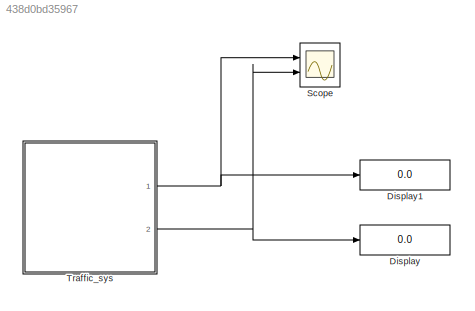
MODEL slx_438d0bd35967
KIND model
CONFIG AbsTol = auto
CONFIG EnableMultiTasking = on
CONFIG FixedStep = 1
CONFIG MaxStep = auto
CONFIG MinStep = auto
CONFIG RelTol = 1e-3
CONFIG SampleTimeConstraint = Unconstrained
CONFIG SolverName = FixedStepDiscrete
CONFIG StartTime = 0.0
CONFIG StopTime = 60
BLOCK [Display] Display
  Decimation = 1
  Ports = [1]
BLOCK [Display] Display1
  Decimation = 1
  Ports = [1]
BLOCK [Scope] Scope
  Floating = off
  NumInputPorts = 2
  Ports = [2]
  ScopeSpecificationString = Simulink.scopes.TimeScopeBlockCfg('CurrentConfiguration', extmgr.ConfigurationSet(extmgr.Configuration('Core','General UI',true),extmgr.Configuration('Core','Source UI',true),extmgr.Configuration('Sources','WiredSimulink',true),extmgr.Configuration('Visuals','Time Domain',true,'SerializedDisplays',{struct('MinYLimReal','0.75','MaxYLimReal','3.25','YLabelReal','','MinYLimMag','0.75','MaxYLimMag','3...<+1382ch>
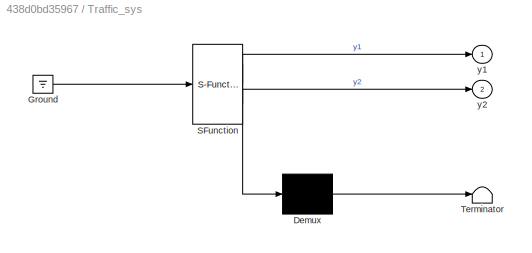
BLOCK [SubSystem] Traffic_sys
  ErrorFcn = Stateflow.Translate.translate
  PermitHierarchicalResolution = ExplicitOnly
  Ports = [0, 2]
  RequestExecContextInheritance = off
  SFBlockType = Chart
  TreatAsAtomicUnit = on
BLOCK [Demux] Traffic_sys/ Demux 
  Outputs = 1
  Ports = [1, 1]
BLOCK [Ground] Traffic_sys/ Ground 
BLOCK [S-Function] Traffic_sys/ SFunction 
  EnableBusSupport = on
  FunctionName = sf_sfun
  PortCounts = [1 3]
  Ports = [1, 3]
  SFcnIsStateOwnerBlock = off
  SFunctionDeploymentMode = off
  Tag = Stateflow S-Function 3
BLOCK [Terminator] Traffic_sys/ Terminator 
BLOCK [Outport] Traffic_sys/y1
BLOCK [Outport] Traffic_sys/y2
  Port = 2
NET Traffic_sys:1 -> Display1:1, Scope:1
NET Traffic_sys:2 -> Display:1, Scope:2
note: NET lines group one-source signal fan-out (src -> all destinations, sorted); 1:1 wires keep LINE
CHART Traffic_sys states=5 transitions=6
  STATE_LABEL 'Stop\ny1=RED;\ny2=GREEN;'
  STATE_LABEL 'StopForTraffic\ny1=RED;\ny2=GREEN;'
  STATE_LABEL 'StopToGo\ny1=RED;\ny2=YELLOW;'
  STATE_LABEL 'GoToStop\ny1=YELLOW;\ny2=RED;'
  STATE_LABEL 'Go\ny1=GREEN;\ny2=RED;'
CHART  states=0 transitions=0
